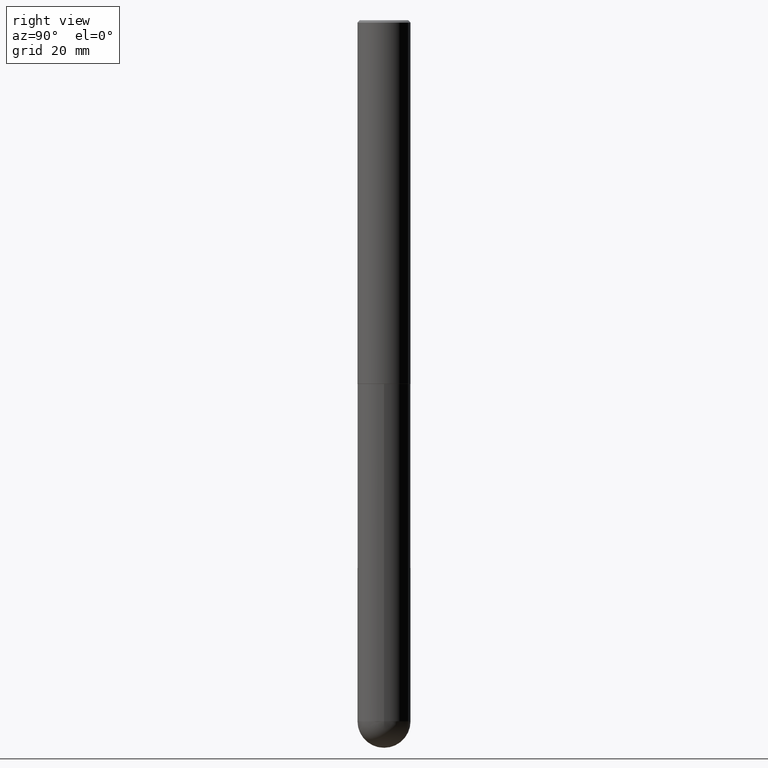
[diagram: clean part render]
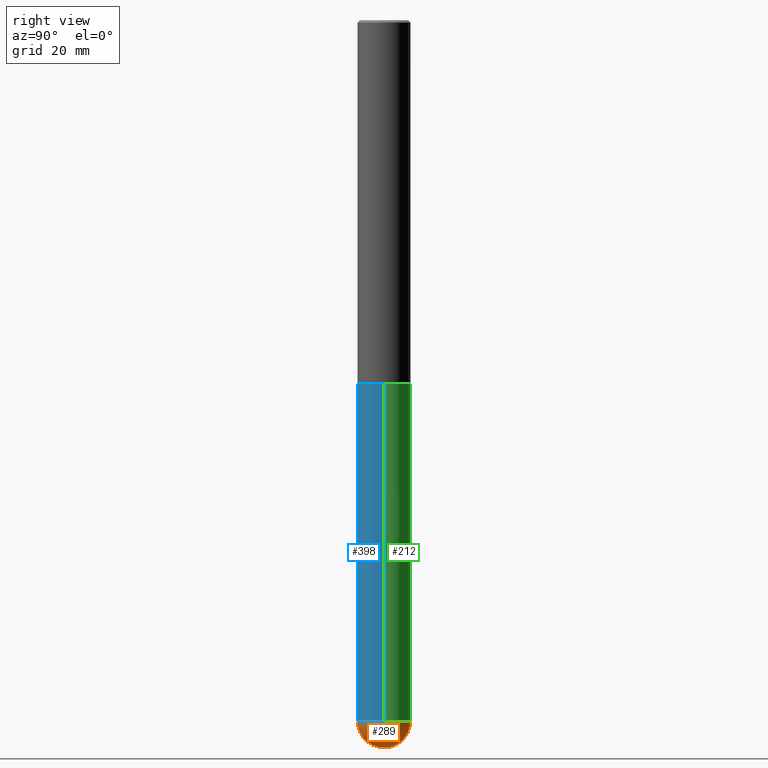
[diagram: same view with three faces highlighted in distinct colors, each labeled with its STEP entity id]
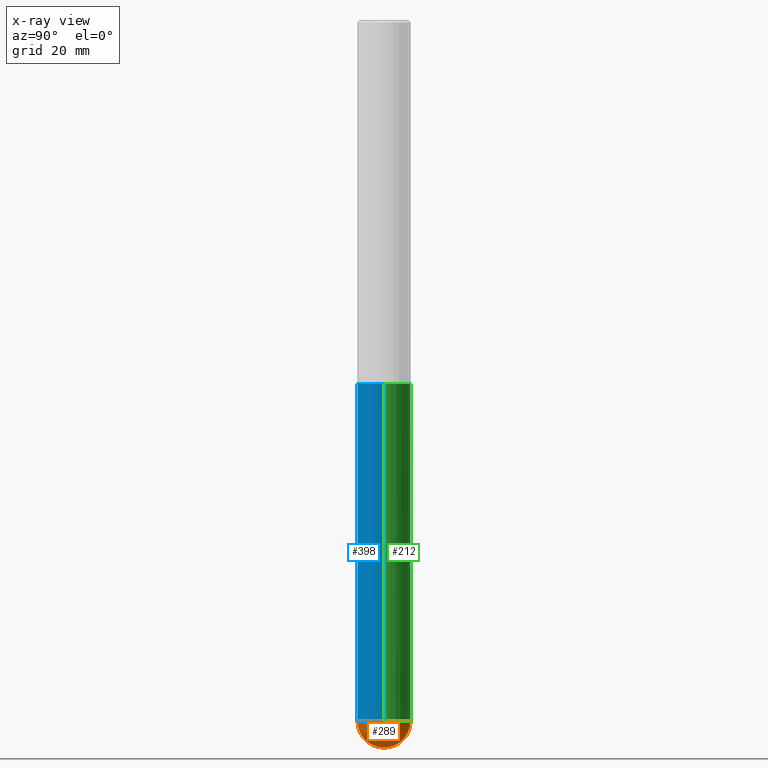
[diagram: x-ray of the same camera — body ghosted, the three highlighted faces saturated]
A machine part, right view with three faces highlighted in distinct colors.
The next image is the same camera in x-ray (body ghosted, the three faces saturated) — at least one of them is partly hidden behind the body in this view.
Their STEP definitions:

[orange] entity #289 — the highlighted spherical surface has radius 5.5562 mm.
#2 = DIRECTION ( 'NONE',  ( -1.000000000000000000, 6.982962677686265922E-15, -4.883557194083111780E-29 ) ) ;
#5 = DIRECTION ( 'NONE',  ( -2.445468806185136597E-29, 3.491481338843145583E-15, 1.000000000000000000 ) ) ;
#21 = DIRECTION ( 'NONE',  ( -1.000000000000000000, 7.105427357601001070E-15, -4.926315508542082329E-29 ) ) ;
#33 = AXIS2_PLACEMENT_3D ( 'NONE', #347, #225, #379 ) ;
#34 = AXIS2_PLACEMENT_3D ( 'NONE', #177, #21, #84 ) ;
#44 = CARTESIAN_POINT ( 'NONE',  ( -1.554312234475076570E-15, -0.2187500000000200950, -5.781249999999999112 ) ) ;
#55 = VERTEX_POINT ( 'NONE', #278 ) ;
#65 = DIRECTION ( 'NONE',  ( 6.982962677686265922E-15, 1.000000000000000000, -4.995379188414666942E-15 ) ) ;
#68 = CIRCLE ( 'NONE', #99, 0.2187499999999999445 ) ;
#69 = VERTEX_POINT ( 'NONE', #150 ) ;
#74 = CIRCLE ( 'NONE', #169, 0.2187499999999999445 ) ;
#80 = AXIS2_PLACEMENT_3D ( 'NONE', #157, #2, #65 ) ;
#84 = DIRECTION ( 'NONE',  ( -7.105427357601001070E-15, -1.000000000000000000, 0.000000000000000000 ) ) ;
#90 = CARTESIAN_POINT ( 'NONE',  ( 1.413786653575781871E-28, -2.018512649018693374E-14, -5.781250000000000000 ) ) ;
#99 = AXIS2_PLACEMENT_3D ( 'NONE', #349, #5, #315 ) ;
#126 = DIRECTION ( 'NONE',  ( -2.445468806185136597E-29, 3.491481338843145583E-15, 1.000000000000000000 ) ) ;
#131 = EDGE_CURVE ( 'NONE', #55, #392, #74, .T. ) ;
#135 = EDGE_CURVE ( 'NONE', #69, #392, #259, .T. ) ;
#150 = CARTESIAN_POINT ( 'NONE',  ( 1.435104644048483615E-28, -2.140967582683325082E-14, -6.000000000000000888 ) ) ;
#157 = CARTESIAN_POINT ( 'NONE',  ( 1.380674675784393807E-28, -2.065930885832698876E-14, -5.781250000000000888 ) ) ;
#166 = ORIENTED_EDGE ( 'NONE', *, *, #265, .F. ) ;
#169 = AXIS2_PLACEMENT_3D ( 'NONE', #90, #126, #257 ) ;
#177 = CARTESIAN_POINT ( 'NONE',  ( 1.380674675784393807E-28, -2.065930885832698876E-14, -5.781250000000000888 ) ) ;
#179 = EDGE_LOOP ( 'NONE', ( #166, #286, #268, #270 ) ) ;
#183 = SPHERICAL_SURFACE ( 'NONE', #80, 0.2187499999999993616 ) ;
#186 = FACE_OUTER_BOUND ( 'NONE', #179, .T. ) ;
#225 = DIRECTION ( 'NONE',  ( 1.000000000000000000, -6.982962677686265922E-15, 4.883557194083112340E-29 ) ) ;
#234 = CARTESIAN_POINT ( 'NONE',  ( 1.527523085744008105E-15, 0.2187499999999792666, -5.781250000000000888 ) ) ;
#257 = DIRECTION ( 'NONE',  ( 1.000000000000000000, -6.982962677686265133E-15, 0.000000000000000000 ) ) ;
#259 = CIRCLE ( 'NONE', #33, 0.2187499999999993616 ) ;
#265 = EDGE_CURVE ( 'NONE', #69, #360, #291, .T. ) ;
#268 = ORIENTED_EDGE ( 'NONE', *, *, #131, .F. ) ;
#270 = ORIENTED_EDGE ( 'NONE', *, *, #277, .F. ) ;
#277 = EDGE_CURVE ( 'NONE', #360, #55, #68, .T. ) ;
#278 = CARTESIAN_POINT ( 'NONE',  ( 0.2187499999999999445, -1.685730833910205431E-14, -5.781250000000000000 ) ) ;
#286 = ORIENTED_EDGE ( 'NONE', *, *, #135, .T. ) ;
#289 = ADVANCED_FACE ( 'NONE', ( #186 ), #183, .T. ) ;
#291 = CIRCLE ( 'NONE', #34, 0.2187499999999993616 ) ;
#315 = DIRECTION ( 'NONE',  ( 1.000000000000000000, -6.982962677686265133E-15, 0.000000000000000000 ) ) ;
#347 = CARTESIAN_POINT ( 'NONE',  ( 1.380674675784393807E-28, -2.065930885832698876E-14, -5.781250000000000888 ) ) ;
#349 = CARTESIAN_POINT ( 'NONE',  ( 1.413786653575781871E-28, -2.018512649018693374E-14, -5.781250000000000000 ) ) ;
#360 = VERTEX_POINT ( 'NONE', #44 ) ;
#379 = DIRECTION ( 'NONE',  ( 6.982962677686266711E-15, 1.000000000000000000, 0.000000000000000000 ) ) ;
#392 = VERTEX_POINT ( 'NONE', #234 ) ;

[blue] entity #398 — the highlighted cylindrical surface (edge-blend (fillet) strip) has radius 5.5562 mm, axis along (-0, 0, 1).
#5 = DIRECTION ( 'NONE',  ( -2.445468806185136597E-29, 3.491481338843145583E-15, 1.000000000000000000 ) ) ;
#27 = VECTOR ( 'NONE', #378, 39.37007874015748143 ) ;
#31 = CARTESIAN_POINT ( 'NONE',  ( -0.2187499999999999445, 1.554312234475218762E-15, -1.076017050993260482E-29 ) ) ;
#32 = EDGE_CURVE ( 'NONE', #55, #173, #247, .T. ) ;
#44 = CARTESIAN_POINT ( 'NONE',  ( -1.554312234475076570E-15, -0.2187500000000200950, -5.781249999999999112 ) ) ;
#55 = VERTEX_POINT ( 'NONE', #278 ) ;
#62 = CIRCLE ( 'NONE', #213, 0.2187500000000000000 ) ;
#66 = EDGE_CURVE ( 'NONE', #411, #71, #182, .T. ) ;
#68 = CIRCLE ( 'NONE', #99, 0.2187499999999999445 ) ;
#71 = VERTEX_POINT ( 'NONE', #281 ) ;
#94 = CIRCLE ( 'NONE', #231, 0.2187499999999999445 ) ;
#99 = AXIS2_PLACEMENT_3D ( 'NONE', #349, #5, #315 ) ;
#109 = AXIS2_PLACEMENT_3D ( 'NONE', #328, #317, #132 ) ;
#117 = DIRECTION ( 'NONE',  ( 1.000000000000000000, -6.982962677686262766E-15, 0.000000000000000000 ) ) ;
#132 = DIRECTION ( 'NONE',  ( 1.000000000000000000, -6.982962677686266711E-15, 4.876176775795935232E-29 ) ) ;
#134 = CARTESIAN_POINT ( 'NONE',  ( -0.2187499999999999445, -1.377547301888296510E-14, -5.781250000000000000 ) ) ;
#154 = CARTESIAN_POINT ( 'NONE',  ( 1.413786653575781871E-28, -2.018512649018693374E-14, -5.781250000000000000 ) ) ;
#155 = DIRECTION ( 'NONE',  ( -2.445468806185136877E-29, 3.491481338843145188E-15, 1.000000000000000000 ) ) ;
#173 = VERTEX_POINT ( 'NONE', #287 ) ;
#174 = EDGE_CURVE ( 'NONE', #411, #360, #94, .T. ) ;
#182 = LINE ( 'NONE', #31, #263 ) ;
#198 = CYLINDRICAL_SURFACE ( 'NONE', #109, 0.2187499999999999445 ) ;
#210 = ORIENTED_EDGE ( 'NONE', *, *, #66, .F. ) ;
#213 = AXIS2_PLACEMENT_3D ( 'NONE', #298, #331, #117 ) ;
#222 = ORIENTED_EDGE ( 'NONE', *, *, #32, .T. ) ;
#224 = EDGE_CURVE ( 'NONE', #71, #173, #62, .T. ) ;
#231 = AXIS2_PLACEMENT_3D ( 'NONE', #154, #412, #397 ) ;
#232 = EDGE_LOOP ( 'NONE', ( #210, #365, #330, #222, #297 ) ) ;
#247 = LINE ( 'NONE', #255, #27 ) ;
#255 = CARTESIAN_POINT ( 'NONE',  ( 0.2187499999999999445, -1.527523085743870449E-15, 1.066663669705360604E-29 ) ) ;
#263 = VECTOR ( 'NONE', #155, 39.37007874015748143 ) ;
#277 = EDGE_CURVE ( 'NONE', #360, #55, #68, .T. ) ;
#278 = CARTESIAN_POINT ( 'NONE',  ( 0.2187499999999999445, -1.685730833910205431E-14, -5.781250000000000000 ) ) ;
#281 = CARTESIAN_POINT ( 'NONE',  ( -0.2187500000000000000, -1.377547301888296510E-14, -2.999999999999999556 ) ) ;
#287 = CARTESIAN_POINT ( 'NONE',  ( 0.2187500000000000000, -1.200196710227330483E-14, -2.999999999999999556 ) ) ;
#297 = ORIENTED_EDGE ( 'NONE', *, *, #224, .F. ) ;
#298 = CARTESIAN_POINT ( 'NONE',  ( 7.336406418555408669E-29, -1.047444401652943478E-14, -2.999999999999999556 ) ) ;
#315 = DIRECTION ( 'NONE',  ( 1.000000000000000000, -6.982962677686265133E-15, 0.000000000000000000 ) ) ;
#317 = DIRECTION ( 'NONE',  ( -2.445468806185136597E-29, 3.491481338843145583E-15, 1.000000000000000000 ) ) ;
#319 = FACE_OUTER_BOUND ( 'NONE', #232, .T. ) ;
#328 = CARTESIAN_POINT ( 'NONE',  ( 0.000000000000000000, 0.000000000000000000, 0.000000000000000000 ) ) ;
#330 = ORIENTED_EDGE ( 'NONE', *, *, #277, .T. ) ;
#331 = DIRECTION ( 'NONE',  ( -2.445468806185136597E-29, 3.491481338843145583E-15, 1.000000000000000000 ) ) ;
#349 = CARTESIAN_POINT ( 'NONE',  ( 1.413786653575781871E-28, -2.018512649018693374E-14, -5.781250000000000000 ) ) ;
#360 = VERTEX_POINT ( 'NONE', #44 ) ;
#365 = ORIENTED_EDGE ( 'NONE', *, *, #174, .T. ) ;
#378 = DIRECTION ( 'NONE',  ( -2.445468806185136877E-29, 3.491481338843145188E-15, 1.000000000000000000 ) ) ;
#397 = DIRECTION ( 'NONE',  ( 1.000000000000000000, -6.982962677686265133E-15, 0.000000000000000000 ) ) ;
#398 = ADVANCED_FACE ( 'NONE', ( #319 ), #198, .T. ) ;
#411 = VERTEX_POINT ( 'NONE', #134 ) ;
#412 = DIRECTION ( 'NONE',  ( -2.445468806185136597E-29, 3.491481338843145583E-15, 1.000000000000000000 ) ) ;

[green] entity #212 — the highlighted cylindrical surface (edge-blend (fillet) strip) has radius 5.5562 mm, axis along (-0, 0, 1).
#11 = CIRCLE ( 'NONE', #240, 0.2187500000000000000 ) ;
#27 = VECTOR ( 'NONE', #378, 39.37007874015748143 ) ;
#31 = CARTESIAN_POINT ( 'NONE',  ( -0.2187499999999999445, 1.554312234475218762E-15, -1.076017050993260482E-29 ) ) ;
#32 = EDGE_CURVE ( 'NONE', #55, #173, #247, .T. ) ;
#39 = AXIS2_PLACEMENT_3D ( 'NONE', #107, #57, #327 ) ;
#55 = VERTEX_POINT ( 'NONE', #278 ) ;
#56 = DIRECTION ( 'NONE',  ( 1.000000000000000000, -6.982962677686265133E-15, 0.000000000000000000 ) ) ;
#57 = DIRECTION ( 'NONE',  ( -2.445468806185136597E-29, 3.491481338843145583E-15, 1.000000000000000000 ) ) ;
#63 = EDGE_CURVE ( 'NONE', #392, #411, #178, .T. ) ;
#66 = EDGE_CURVE ( 'NONE', #411, #71, #182, .T. ) ;
#71 = VERTEX_POINT ( 'NONE', #281 ) ;
#74 = CIRCLE ( 'NONE', #169, 0.2187499999999999445 ) ;
#90 = CARTESIAN_POINT ( 'NONE',  ( 1.413786653575781871E-28, -2.018512649018693374E-14, -5.781250000000000000 ) ) ;
#107 = CARTESIAN_POINT ( 'NONE',  ( 0.000000000000000000, 0.000000000000000000, 0.000000000000000000 ) ) ;
#114 = ORIENTED_EDGE ( 'NONE', *, *, #63, .T. ) ;
#126 = DIRECTION ( 'NONE',  ( -2.445468806185136597E-29, 3.491481338843145583E-15, 1.000000000000000000 ) ) ;
#131 = EDGE_CURVE ( 'NONE', #55, #392, #74, .T. ) ;
#134 = CARTESIAN_POINT ( 'NONE',  ( -0.2187499999999999445, -1.377547301888296510E-14, -5.781250000000000000 ) ) ;
#155 = DIRECTION ( 'NONE',  ( -2.445468806185136877E-29, 3.491481338843145188E-15, 1.000000000000000000 ) ) ;
#169 = AXIS2_PLACEMENT_3D ( 'NONE', #90, #126, #257 ) ;
#171 = FACE_OUTER_BOUND ( 'NONE', #306, .T. ) ;
#172 = CARTESIAN_POINT ( 'NONE',  ( 7.336406418555408669E-29, -1.047444401652943478E-14, -2.999999999999999556 ) ) ;
#173 = VERTEX_POINT ( 'NONE', #287 ) ;
#178 = CIRCLE ( 'NONE', #211, 0.2187499999999999445 ) ;
#180 = CYLINDRICAL_SURFACE ( 'NONE', #39, 0.2187499999999999445 ) ;
#182 = LINE ( 'NONE', #31, #263 ) ;
#211 = AXIS2_PLACEMENT_3D ( 'NONE', #313, #302, #56 ) ;
#212 = ADVANCED_FACE ( 'NONE', ( #171 ), #180, .T. ) ;
#234 = CARTESIAN_POINT ( 'NONE',  ( 1.527523085744008105E-15, 0.2187499999999792666, -5.781250000000000888 ) ) ;
#240 = AXIS2_PLACEMENT_3D ( 'NONE', #172, #296, #355 ) ;
#247 = LINE ( 'NONE', #255, #27 ) ;
#255 = CARTESIAN_POINT ( 'NONE',  ( 0.2187499999999999445, -1.527523085743870449E-15, 1.066663669705360604E-29 ) ) ;
#257 = DIRECTION ( 'NONE',  ( 1.000000000000000000, -6.982962677686265133E-15, 0.000000000000000000 ) ) ;
#263 = VECTOR ( 'NONE', #155, 39.37007874015748143 ) ;
#278 = CARTESIAN_POINT ( 'NONE',  ( 0.2187499999999999445, -1.685730833910205431E-14, -5.781250000000000000 ) ) ;
#281 = CARTESIAN_POINT ( 'NONE',  ( -0.2187500000000000000, -1.377547301888296510E-14, -2.999999999999999556 ) ) ;
#287 = CARTESIAN_POINT ( 'NONE',  ( 0.2187500000000000000, -1.200196710227330483E-14, -2.999999999999999556 ) ) ;
#292 = ORIENTED_EDGE ( 'NONE', *, *, #66, .T. ) ;
#293 = ORIENTED_EDGE ( 'NONE', *, *, #32, .F. ) ;
#295 = ORIENTED_EDGE ( 'NONE', *, *, #131, .T. ) ;
#296 = DIRECTION ( 'NONE',  ( -2.445468806185136597E-29, 3.491481338843145583E-15, 1.000000000000000000 ) ) ;
#302 = DIRECTION ( 'NONE',  ( -2.445468806185136597E-29, 3.491481338843145583E-15, 1.000000000000000000 ) ) ;
#306 = EDGE_LOOP ( 'NONE', ( #114, #292, #389, #293, #295 ) ) ;
#313 = CARTESIAN_POINT ( 'NONE',  ( 1.413786653575781871E-28, -2.018512649018693374E-14, -5.781250000000000000 ) ) ;
#327 = DIRECTION ( 'NONE',  ( 1.000000000000000000, -6.982962677686266711E-15, 4.876176775795935232E-29 ) ) ;
#355 = DIRECTION ( 'NONE',  ( 1.000000000000000000, -6.982962677686262766E-15, 0.000000000000000000 ) ) ;
#378 = DIRECTION ( 'NONE',  ( -2.445468806185136877E-29, 3.491481338843145188E-15, 1.000000000000000000 ) ) ;
#380 = EDGE_CURVE ( 'NONE', #173, #71, #11, .T. ) ;
#389 = ORIENTED_EDGE ( 'NONE', *, *, #380, .F. ) ;
#392 = VERTEX_POINT ( 'NONE', #234 ) ;
#411 = VERTEX_POINT ( 'NONE', #134 ) ;